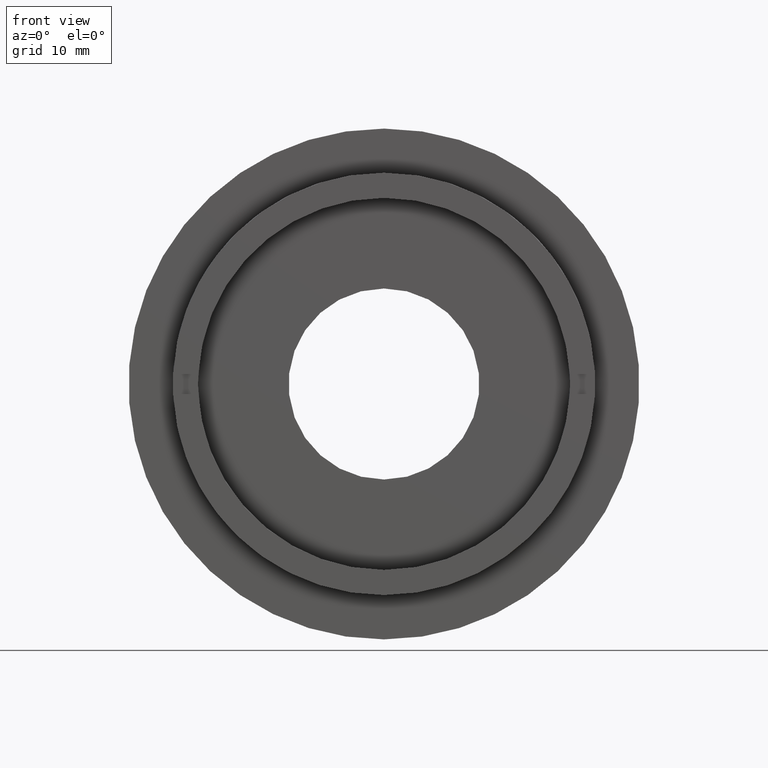
[diagram: clean part render]
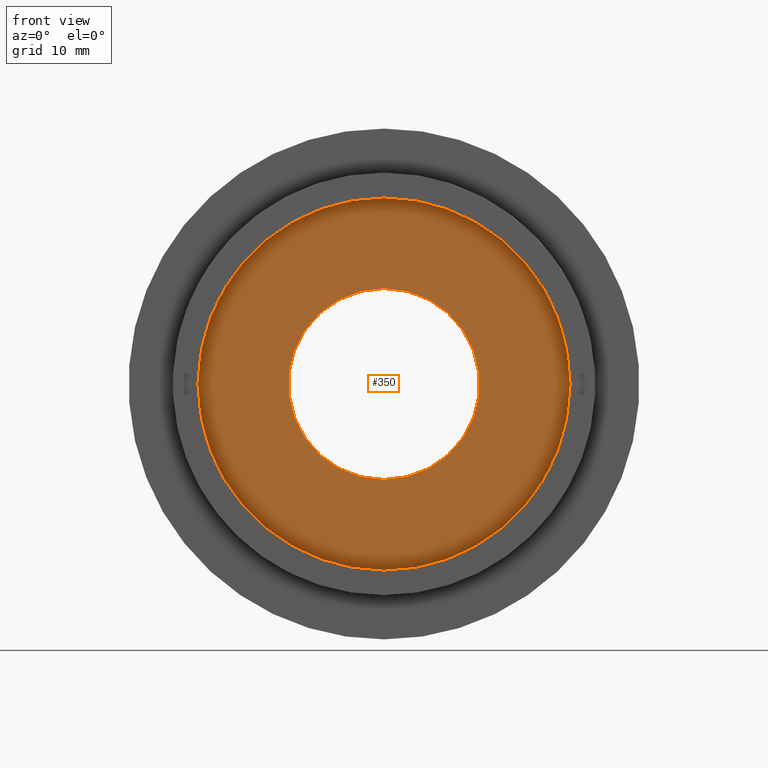
[diagram: same view with one face highlighted and labeled with its STEP entity id]
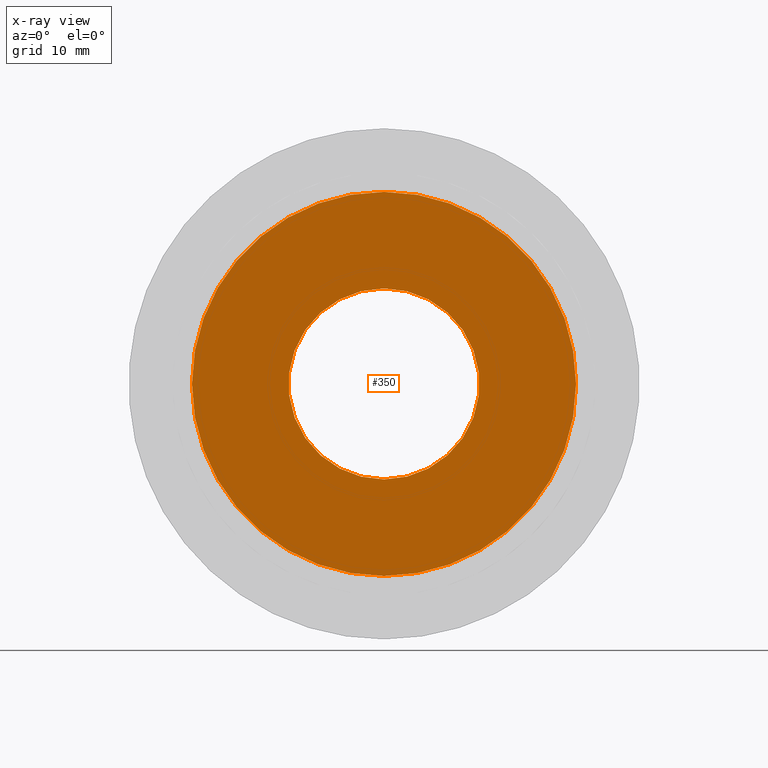
[diagram: x-ray of the same camera — body ghosted, the highlighted face saturated]
A machine part, front view. The second image highlights one B-rep face of the part: STEP entity #350.
The next image is the same camera in x-ray: the body ghosted, the highlighted face saturated — about 0% of this face is hidden behind the body in this view.
In plain terms, the highlighted planar face has unit normal (0, -1, 0).
Its self-contained STEP definition (entity closure, byte-faithful):
#95 = CIRCLE ( 'NONE', #128, 19.10000000000000100 ) ;
#115 = AXIS2_PLACEMENT_3D ( 'NONE', #206, #867, #497 ) ;
#116 = VERTEX_POINT ( 'NONE', #707 ) ;
#128 = AXIS2_PLACEMENT_3D ( 'NONE', #234, #222, #487 ) ;
#177 = ORIENTED_EDGE ( 'NONE', *, *, #955, .T. ) ;
#206 = CARTESIAN_POINT ( 'NONE',  ( 0.0000000000000000000, 5.000000000000000900, 0.0000000000000000000 ) ) ;
#211 = EDGE_CURVE ( 'NONE', #1017, #642, #485, .T. ) ;
#222 = DIRECTION ( 'NONE',  ( -0.0000000000000000000, 1.000000000000000000, -0.0000000000000000000 ) ) ;
#234 = CARTESIAN_POINT ( 'NONE',  ( 0.0000000000000000000, 5.000000000000000900, 0.0000000000000000000 ) ) ;
#299 = AXIS2_PLACEMENT_3D ( 'NONE', #1028, #1295, #1280 ) ;
#350 = ADVANCED_FACE ( 'NONE', ( #1111, #1160 ), #396, .T. ) ;
#385 = CARTESIAN_POINT ( 'NONE',  ( 1.163414459189985300E-015, 5.000000000000000900, -9.499999999999998200 ) ) ;
#396 = PLANE ( 'NONE',  #1084 ) ;
#415 = DIRECTION ( 'NONE',  ( 0.0000000000000000000, -0.0000000000000000000, -1.000000000000000000 ) ) ;
#485 = CIRCLE ( 'NONE', #115, 9.499999999999998200 ) ;
#487 = DIRECTION ( 'NONE',  ( 0.0000000000000000000, 0.0000000000000000000, 1.000000000000000000 ) ) ;
#497 = DIRECTION ( 'NONE',  ( 0.0000000000000000000, 0.0000000000000000000, 1.000000000000000000 ) ) ;
#581 = ORIENTED_EDGE ( 'NONE', *, *, #1320, .F. ) ;
#607 = DIRECTION ( 'NONE',  ( -0.0000000000000000000, 1.000000000000000000, -0.0000000000000000000 ) ) ;
#642 = VERTEX_POINT ( 'NONE', #385 ) ;
#647 = EDGE_LOOP ( 'NONE', ( #772, #581 ) ) ;
#672 = CIRCLE ( 'NONE', #299, 9.499999999999998200 ) ;
#689 = CARTESIAN_POINT ( 'NONE',  ( 2.339075386371445100E-015, 5.000000000000000900, -19.10000000000000100 ) ) ;
#707 = CARTESIAN_POINT ( 'NONE',  ( 0.0000000000000000000, 5.000000000000000900, 19.10000000000000100 ) ) ;
#772 = ORIENTED_EDGE ( 'NONE', *, *, #862, .F. ) ;
#809 = EDGE_LOOP ( 'NONE', ( #921, #177 ) ) ;
#817 = VERTEX_POINT ( 'NONE', #689 ) ;
#840 = DIRECTION ( 'NONE',  ( 0.0000000000000000000, 0.0000000000000000000, 1.000000000000000000 ) ) ;
#862 = EDGE_CURVE ( 'NONE', #116, #817, #868, .T. ) ;
#867 = DIRECTION ( 'NONE',  ( -0.0000000000000000000, 1.000000000000000000, -0.0000000000000000000 ) ) ;
#868 = CIRCLE ( 'NONE', #1217, 19.10000000000000100 ) ;
#921 = ORIENTED_EDGE ( 'NONE', *, *, #211, .T. ) ;
#955 = EDGE_CURVE ( 'NONE', #642, #1017, #672, .T. ) ;
#976 = CARTESIAN_POINT ( 'NONE',  ( -9.499999999999998200, 4.999999999999999100, 0.0000000000000000000 ) ) ;
#1017 = VERTEX_POINT ( 'NONE', #1114 ) ;
#1028 = CARTESIAN_POINT ( 'NONE',  ( 0.0000000000000000000, 5.000000000000000900, 0.0000000000000000000 ) ) ;
#1033 = DIRECTION ( 'NONE',  ( 0.0000000000000000000, -1.000000000000000000, 0.0000000000000000000 ) ) ;
#1084 = AXIS2_PLACEMENT_3D ( 'NONE', #976, #1033, #415 ) ;
#1086 = CARTESIAN_POINT ( 'NONE',  ( 0.0000000000000000000, 5.000000000000000900, 0.0000000000000000000 ) ) ;
#1111 = FACE_BOUND ( 'NONE', #809, .T. ) ;
#1114 = CARTESIAN_POINT ( 'NONE',  ( 0.0000000000000000000, 5.000000000000000900, 9.499999999999998200 ) ) ;
#1160 = FACE_OUTER_BOUND ( 'NONE', #647, .T. ) ;
#1217 = AXIS2_PLACEMENT_3D ( 'NONE', #1086, #607, #840 ) ;
#1280 = DIRECTION ( 'NONE',  ( 0.0000000000000000000, 0.0000000000000000000, 1.000000000000000000 ) ) ;
#1295 = DIRECTION ( 'NONE',  ( -0.0000000000000000000, 1.000000000000000000, -0.0000000000000000000 ) ) ;
#1320 = EDGE_CURVE ( 'NONE', #817, #116, #95, .T. ) ;